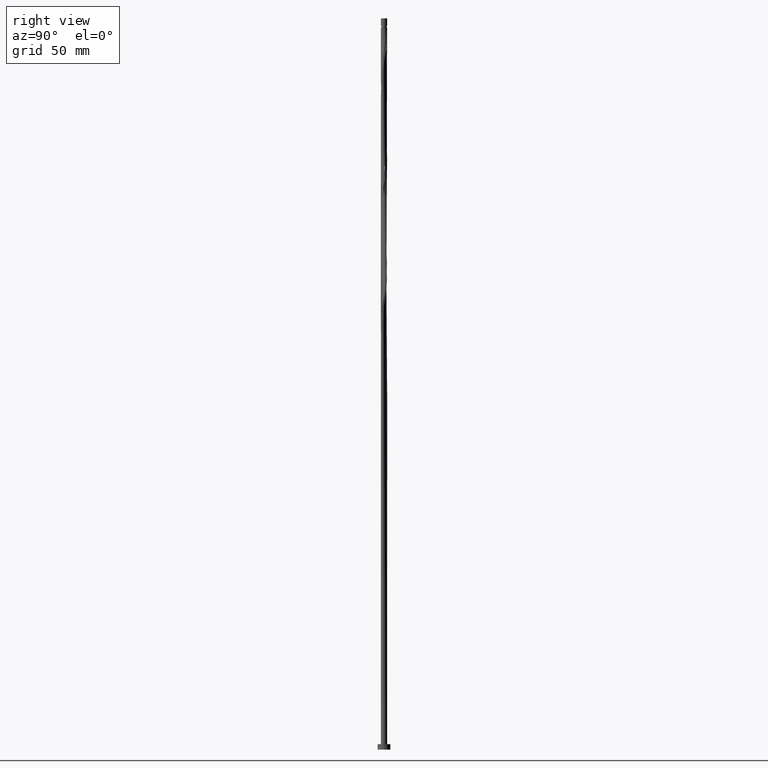
[diagram: clean part render]
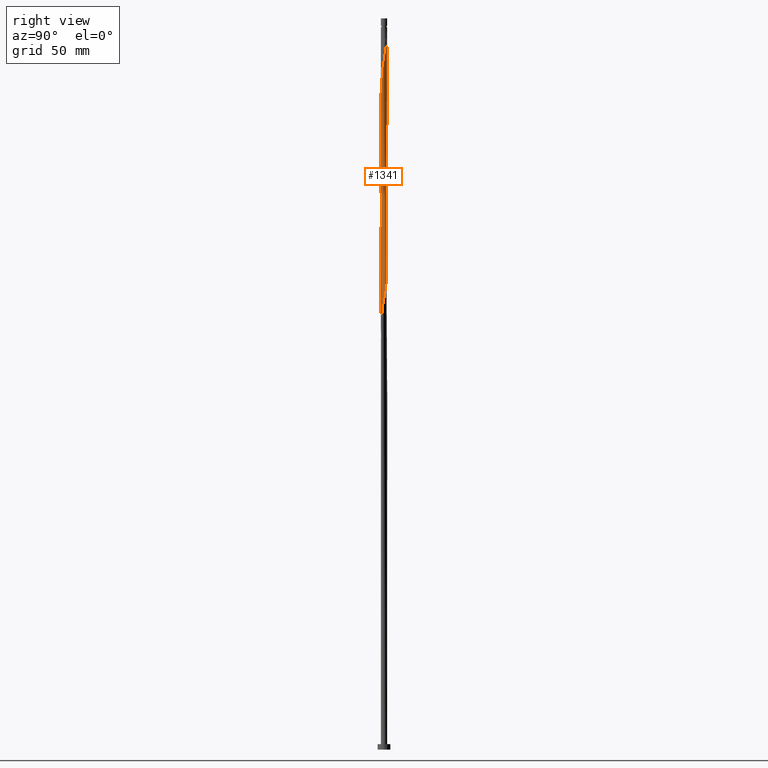
[diagram: same view with one face highlighted and labeled with its STEP entity id]
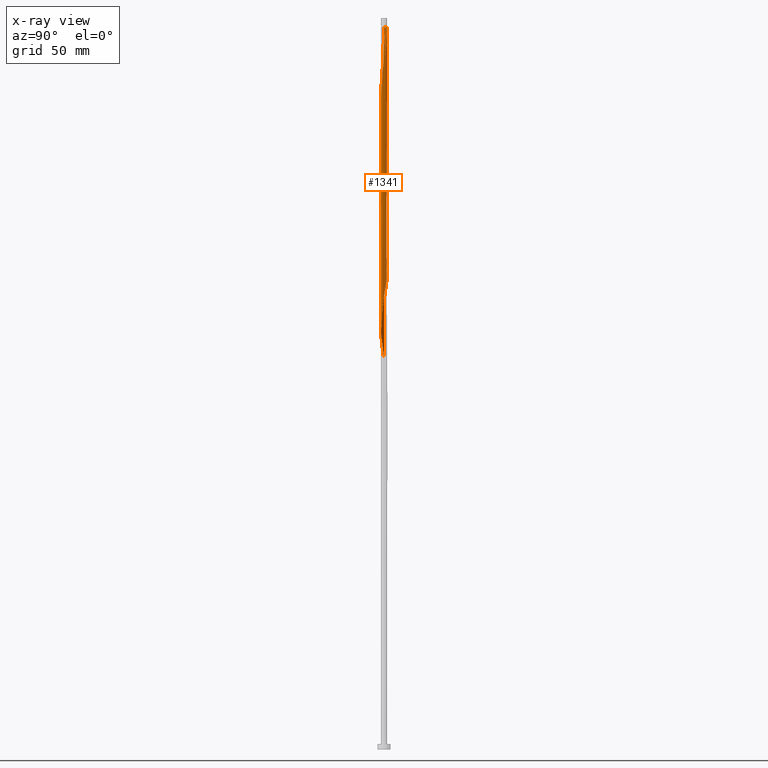
[diagram: x-ray of the same camera — body ghosted, the highlighted face saturated]
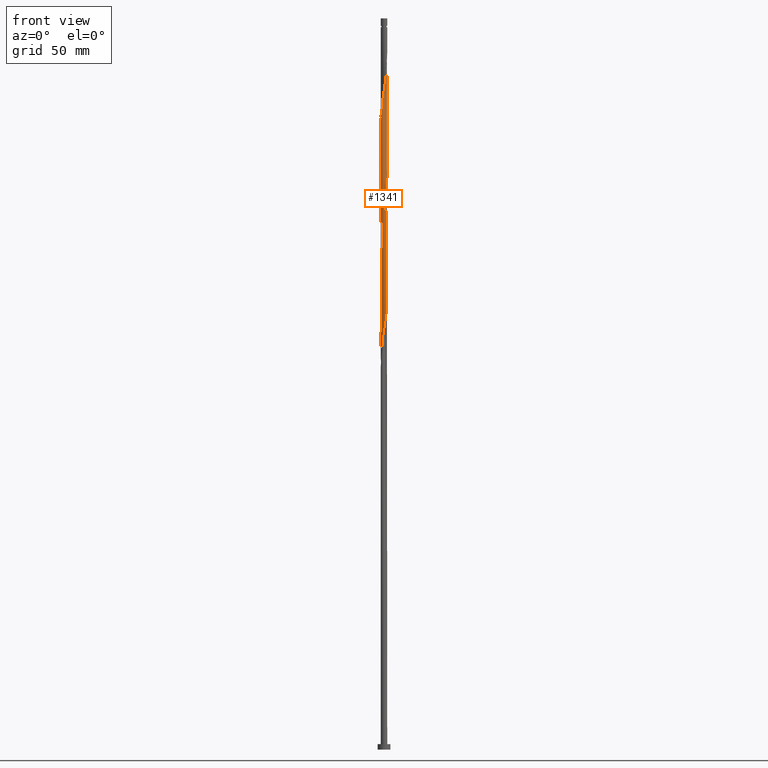
[diagram: same view with one face highlighted and labeled with its STEP entity id]
A machine part, right view. The second image highlights one B-rep face of the part: STEP entity #1341.
The next image is the same camera in x-ray: the body ghosted, the highlighted face saturated — about 0% of this face is hidden behind the body in this view.
A second angle (front view) of the same face is appended — the face is thin or edge-on in the first view.
In plain terms, the highlighted cylindrical surface (bore or boss wall) has radius 1.75 mm, axis along (-0, -0, -1).
Its self-contained STEP definition (entity closure, byte-faithful):
#3 = CARTESIAN_POINT ( 'NONE',  ( -1.750000000000000000, -1.644325696273075192E-16, 213.9816421502443404 ) ) ;
#39 = ORIENTED_EDGE ( 'NONE', *, *, #1815, .T. ) ;
#57 = CARTESIAN_POINT ( 'NONE',  ( -1.659356368983971652, -0.5559104610567499050, 217.4117544622783669 ) ) ;
#66 = CARTESIAN_POINT ( 'NONE',  ( 1.724446699451429366, -0.3501638371253402160, 245.1895322400561099 ) ) ;
#74 = CARTESIAN_POINT ( 'NONE',  ( 1.738675734985620336, 0.1987628953608082116, 248.5228655733894811 ) ) ;
#75 = CARTESIAN_POINT ( 'NONE',  ( 0.6972041507806022720, -1.605118803121534876, 364.0784211289450241 ) ) ;
#79 = EDGE_CURVE ( 'NONE', #1019, #643, #142, .T. ) ;
#82 = ORIENTED_EDGE ( 'NONE', *, *, #1622, .T. ) ;
#84 = CARTESIAN_POINT ( 'NONE',  ( -1.189285546401575688, 1.296892833351922736, 271.8561989067227955 ) ) ;
#85 = CARTESIAN_POINT ( 'NONE',  ( 1.724446699451432474, 0.3501638371253398829, 378.5228655733894243 ) ) ;
#94 = CARTESIAN_POINT ( 'NONE',  ( -0.1679918395066860026, -1.751602087786616302, 229.6339766845005670 ) ) ;
#95 = EDGE_CURVE ( 'NONE', #1775, #1219, #1181, .T. ) ;
#97 = CARTESIAN_POINT ( 'NONE',  ( -1.189285546401577909, -1.296892833351923846, 351.8561989067226818 ) ) ;
#105 = CARTESIAN_POINT ( 'NONE',  ( -1.669203472836609414, -0.5256041916406432035, 346.3006433511673094 ) ) ;
#114 = CARTESIAN_POINT ( 'NONE',  ( -0.7263150966484996918, -1.592157774964682915, 355.1895322400561099 ) ) ;
#122 = CARTESIAN_POINT ( 'NONE',  ( 1.165474128162896417, 1.318332730634496519, 322.9673100178338814 ) ) ;
#142 = LINE ( 'NONE', #1610, #334 ) ;
#146 = DIRECTION ( 'NONE',  ( -0.000000000000000000, -0.000000000000000000, -1.000000000000000000 ) ) ;
#149 = CARTESIAN_POINT ( 'NONE',  ( 1.041471584205018397, -1.406355907760723722, 304.0784211289450241 ) ) ;
#161 = CARTESIAN_POINT ( 'NONE',  ( 0.7263150966484975823, -1.592157774964680916, 301.8561989067227955 ) ) ;
#170 = CARTESIAN_POINT ( 'NONE',  ( 1.432935985591726524, -1.021286244534576726, 307.4117544622783953 ) ) ;
#178 = CARTESIAN_POINT ( 'NONE',  ( -1.414102509266472518, -1.047208300848277984, 287.4117544622782816 ) ) ;
#197 = CARTESIAN_POINT ( 'NONE',  ( -1.311110765996650995, 1.159089538943249176, 272.9673100178339382 ) ) ;
#204 = CARTESIAN_POINT ( 'NONE',  ( 0.5284993664679568104, 1.678397912213382526, 260.7450877956116528 ) ) ;
#211 = VECTOR ( 'NONE', #1313, 1000.000000000000000 ) ;
#215 = CARTESIAN_POINT ( 'NONE',  ( 1.742006628276570046, -0.1670715626325923187, 246.3006433511673379 ) ) ;
#222 = CARTESIAN_POINT ( 'NONE',  ( 0.01593294872431177955, -1.749927467395419933, 230.7450877956116813 ) ) ;
#224 = CARTESIAN_POINT ( 'NONE',  ( 1.742006628276573155, 0.1670715626325900982, 377.4117544622783953 ) ) ;
#225 = ORIENTED_EDGE ( 'NONE', *, *, #1741, .F. ) ;
#230 = VERTEX_POINT ( 'NONE', #1739 ) ;
#233 = CARTESIAN_POINT ( 'NONE',  ( -1.523448115906754330, 0.8611653953452605981, 275.1895322400562236 ) ) ;
#235 = CARTESIAN_POINT ( 'NONE',  ( -1.311110765996653882, -1.159089538943250286, 350.7450877956116528 ) ) ;
#244 = CARTESIAN_POINT ( 'NONE',  ( -1.041471584205018841, 1.406355907760723500, 337.4117544622783953 ) ) ;
#247 = CARTESIAN_POINT ( 'NONE',  ( 1.738675734985623444, -0.1987628953608094051, 375.1895322400560531 ) ) ;
#254 = CARTESIAN_POINT ( 'NONE',  ( -0.3794151541219218382, 1.708374707382030344, 332.9673100178338814 ) ) ;
#265 = CARTESIAN_POINT ( 'NONE',  ( 0.8659089350932489548, 1.531839694029681231, 325.1895322400561668 ) ) ;
#268 = CARTESIAN_POINT ( 'NONE',  ( 0.5284993664679552561, -1.678397912213386300, 362.9673100178339382 ) ) ;
#274 = CARTESIAN_POINT ( 'NONE',  ( 1.414102509266473184, 1.047208300848276874, 320.7450877956117097 ) ) ;
#282 = CARTESIAN_POINT ( 'NONE',  ( -1.432935985591727190, 1.021286244534576060, 340.7450877956118234 ) ) ;
#295 = CARTESIAN_POINT ( 'NONE',  ( 0.8936576220084644362, 1.515818982169525819, 387.4117544622783953 ) ) ;
#305 = CARTESIAN_POINT ( 'NONE',  ( -0.1679918395066765380, 1.751602087786618966, 394.0784211289450241 ) ) ;
#307 = CARTESIAN_POINT ( 'NONE',  ( -0.1679918395066860026, -1.751602087786616302, 296.3006433511673094 ) ) ;
#321 = CARTESIAN_POINT ( 'NONE',  ( -1.015691531628072575, -1.425086212332089097, 290.7450877956117097 ) ) ;
#329 = CARTESIAN_POINT ( 'NONE',  ( 0.000000000000000000, 0.000000000000000000, 400.0000000000000000 ) ) ;
#331 = CARTESIAN_POINT ( 'NONE',  ( -0.3482456029873576830, 1.715000000000447056, 395.1895322400559962 ) ) ;
#334 = VECTOR ( 'NONE', #729, 1000.000000000000000 ) ;
#341 = CARTESIAN_POINT ( 'NONE',  ( 1.432935985591726524, -1.021286244534576726, 240.7450877956117381 ) ) ;
#352 = CARTESIAN_POINT ( 'NONE',  ( 0.1679918395066853365, 1.751602087786616080, 262.9673100178339382 ) ) ;
#362 = CARTESIAN_POINT ( 'NONE',  ( 1.041471584205018397, -1.406355907760723722, 237.4117544622784237 ) ) ;
#370 = CARTESIAN_POINT ( 'NONE',  ( 0.8659089350932489548, 1.531839694029681231, 258.5228655733894811 ) ) ;
#371 = CARTESIAN_POINT ( 'NONE',  ( -0.8936576220084635480, -1.515818982169526485, 354.0784211289450241 ) ) ;
#379 = CARTESIAN_POINT ( 'NONE',  ( 0.5589725712885337261, -1.668496567759837124, 234.0784211289449956 ) ) ;
#390 = DIRECTION ( 'NONE',  ( -1.000000000000000000, 0.000000000000000000, 0.000000000000000000 ) ) ;
#400 = CARTESIAN_POINT ( 'NONE',  ( 0.3482456029873208236, 1.714999999999998970, 328.5228655733894243 ) ) ;
#405 = VERTEX_POINT ( 'NONE', #331 ) ;
#413 =( BOUNDED_CURVE ( )  B_SPLINE_CURVE ( 2, ( #842, #1590, #1696, #429, #1285, #977, #1129, #282, #997, #553, #244, #1013, #1273, #1708, #254, #1728, #1571, #871, #400, #1414, #1140, #265, #1425, #122, #707, #274, #864, #734, #1040, #1781, #596, #1486, #1758 ),
 .UNSPECIFIED., .F., .T. ) 
 B_SPLINE_CURVE_WITH_KNOTS ( ( 3, 2, 2, 2, 2, 2, 2, 2, 2, 2, 2, 2, 2, 2, 2, 2, 3 ),
 ( 0.4295286012773116280, 0.4333333333333333481, 0.4416666666666666519, 0.4500000000000000111, 0.4583333333333333148, 0.4666666666666666741, 0.4749999999999999778, 0.4833333333333333370, 0.4916666666666666408, 0.5000000000000000000, 0.5083333333333333037, 0.5166666666666667185, 0.5250000000000000222, 0.5333333333333333259, 0.5416666666666666297, 0.5500000000000000444, 0.5545286012773111839 ),
 .UNSPECIFIED. ) 
 CURVE ( )  GEOMETRIC_REPRESENTATION_ITEM ( )  RATIONAL_B_SPLINE_CURVE ( ( 0.9066196499552807708, 0.9068171577856936061, 0.9090909090909925494, 0.9041108139712406011, 0.9090909090909925494, 0.9041108139712406011, 0.9090909090909925494, 0.9041108139712406011, 0.9090909090909925494, 0.9041108139712406011, 0.9090909090909925494, 0.9041108139712406011, 0.9090909090909925494, 0.9041108139712406011, 0.9090909090909925494, 0.9041108139712406011, 0.9090909090909925494, 0.9041108139712406011, 0.9090909090909925494, 0.9041108139712406011, 0.9090909090909925494, 0.9041108139712406011, 0.9090909090909925494, 0.9041108139712406011, 0.9090909090909925494, 0.9041108139712406011, 0.9090909090909925494, 0.9041108139712406011, 0.9090909090909925494, 0.9041108139712406011, 0.9090909090909925494, 0.9063845652765397665, 0.9066196499552807708 ) ) 
 REPRESENTATION_ITEM ( '' )  );
#429 = CARTESIAN_POINT ( 'NONE',  ( -1.724446699451429366, 0.3501638371253399384, 345.1895322400561099 ) ) ;
#454 = CARTESIAN_POINT ( 'NONE',  ( 1.724446699451429366, -0.3501638371253402160, 311.8561989067227955 ) ) ;
#463 = CARTESIAN_POINT ( 'NONE',  ( 1.311110765996654548, 1.159089538943249620, 384.0784211289449672 ) ) ;
#472 = CARTESIAN_POINT ( 'NONE',  ( 1.742006628276570046, -0.1670715626325923187, 312.9673100178339951 ) ) ;
#476 = FACE_OUTER_BOUND ( 'NONE', #857, .T. ) ;
#482 =( BOUNDED_CURVE ( )  B_SPLINE_CURVE ( 2, ( #1406, #968, #1286, #536, #105, #844, #1264, #1277, #235, #97, #1680, #371, #114, #1825, #1573, #1123, #518, #1854, #980, #268, #75, #1554, #1390, #546, #1417, #854, #1131, #1529, #658, #1711, #247, #959, #224, #85, #989, #1032, #1583, #1025, #463, #1322, #709, #295, #873, #1599, #1298, #1609, #1042, #305, #1748 ),
 .UNSPECIFIED., .F., .T. ) 
 B_SPLINE_CURVE_WITH_KNOTS ( ( 3, 2, 2, 2, 2, 2, 2, 2, 2, 2, 2, 2, 2, 2, 2, 2, 2, 2, 2, 2, 2, 2, 2, 2, 3 ),
 ( 0.5545286012773116280, 0.5583333333333333481, 0.5666666666666666519, 0.5749999999999999556, 0.5833333333333332593, 0.5916666666666665630, 0.5999999999999998668, 0.6083333333333332815, 0.6166666666666665853, 0.6249999999999998890, 0.6333333333333331927, 0.6416666666666664964, 0.6499999999999999112, 0.6583333333333332149, 0.6666666666666665186, 0.6749999999999998224, 0.6833333333333331261, 0.6916666666666664298, 0.6999999999999997335, 0.7083333333333330373, 0.7166666666666664520, 0.7249999999999996447, 0.7333333333333330595, 0.7416666666666663632, 0.7499999999999996669 ),
 .UNSPECIFIED. ) 
 CURVE ( )  GEOMETRIC_REPRESENTATION_ITEM ( )  RATIONAL_B_SPLINE_CURVE ( ( 0.9066196499552878763, 0.9068171577857007115, 0.9090909090909996548, 0.9041108139712475955, 0.9090909090909996548, 0.9041108139712475955, 0.9090909090909996548, 0.9041108139712475955, 0.9090909090909996548, 0.9041108139712475955, 0.9090909090909996548, 0.9041108139712475955, 0.9090909090909996548, 0.9041108139712475955, 0.9090909090909996548, 0.9041108139712475955, 0.9090909090909996548, 0.9041108139712475955, 0.9090909090909996548, 0.9041108139712475955, 0.9090909090909996548, 0.9041108139712475955, 0.9090909090909996548, 0.9041108139712475955, 0.9090909090909996548, 0.9041108139712475955, 0.9090909090909996548, 0.9041108139712475955, 0.9090909090909996548, 0.9041108139712475955, 0.9090909090909996548, 0.9041108139712475955, 0.9090909090909996548, 0.9041108139712475955, 0.9090909090909996548, 0.9041108139712475955, 0.9090909090909996548, 0.9041108139712475955, 0.9090909090909996548, 0.9041108139712475955, 0.9090909090909996548, 0.9041108139712475955, 0.9090909090909996548, 0.9041108139712475955, 0.9090909090909996548, 0.9041108139712475955, 0.9090909090909996548, 0.9041108139712478176, 0.9090909090909994328 ) ) 
 REPRESENTATION_ITEM ( '' )  );
#486 = CARTESIAN_POINT ( 'NONE',  ( 1.311110765996650995, -1.159089538943249842, 306.3006433511671958 ) ) ;
#493 = CARTESIAN_POINT ( 'NONE',  ( 1.750000000000000000, 2.143131898507868297E-16, 395.1895322400561668 ) ) ;
#498 = CARTESIAN_POINT ( 'NONE',  ( -1.659356368983971652, -0.5559104610567499050, 284.0784211289451378 ) ) ;
#508 = CARTESIAN_POINT ( 'NONE',  ( 1.289788318714684578, 1.182770515741387474, 255.1895322400561952 ) ) ;
#516 = CARTESIAN_POINT ( 'NONE',  ( -0.01593294872431220977, 1.749927467395419933, 264.0784211289449672 ) ) ;
#518 = CARTESIAN_POINT ( 'NONE',  ( -0.01593294872431327489, -1.749927467395422820, 359.6339766845005670 ) ) ;
#524 = CARTESIAN_POINT ( 'NONE',  ( 0.6972041507806027161, 1.605118803121531990, 259.6339766845006807 ) ) ;
#535 = CARTESIAN_POINT ( 'NONE',  ( -0.5589725712885340592, 1.668496567759837124, 267.4117544622784521 ) ) ;
#536 = CARTESIAN_POINT ( 'NONE',  ( -1.724446699451432474, -0.3501638371253400495, 345.1895322400561099 ) ) ;
#544 = CARTESIAN_POINT ( 'NONE',  ( -1.749999999999999556, -0.09970404053125818400, 214.5872334596288908 ) ) ;
#546 = CARTESIAN_POINT ( 'NONE',  ( 1.165474128162897527, -1.318332730634499850, 367.4117544622784521 ) ) ;
#553 = CARTESIAN_POINT ( 'NONE',  ( -1.189285546401575688, 1.296892833351922736, 338.5228655733894811 ) ) ;
#589 = ORIENTED_EDGE ( 'NONE', *, *, #95, .T. ) ;
#596 = CARTESIAN_POINT ( 'NONE',  ( 1.738675734985620336, 0.1987628953608082116, 315.1895322400560531 ) ) ;
#601 = CARTESIAN_POINT ( 'NONE',  ( -1.289788318714684578, -1.182770515741387474, 288.5228655733895380 ) ) ;
#605 = ORIENTED_EDGE ( 'NONE', *, *, #669, .F. ) ;
#639 = CARTESIAN_POINT ( 'NONE',  ( -1.717784912869531500, -0.3815050788614599009, 216.3006433511672526 ) ) ;
#643 = VERTEX_POINT ( 'NONE', #1759 ) ;
#651 = CARTESIAN_POINT ( 'NONE',  ( -1.742006628276570046, 0.1670715626325917080, 279.6339766845006807 ) ) ;
#657 = CARTESIAN_POINT ( 'NONE',  ( 1.015691531628073463, 1.425086212332088431, 257.4117544622783953 ) ) ;
#658 = CARTESIAN_POINT ( 'NONE',  ( 1.659356368983974317, -0.5559104610567522364, 372.9673100178339382 ) ) ;
#664 = CARTESIAN_POINT ( 'NONE',  ( -1.669203472836606084, 0.5256041916406430925, 277.4117544622784521 ) ) ;
#669 = EDGE_CURVE ( 'NONE', #230, #1219, #1525, .T. ) ;
#673 = CARTESIAN_POINT ( 'NONE',  ( -1.165474128162896417, -1.318332730634496741, 222.9673100178339382 ) ) ;
#707 = CARTESIAN_POINT ( 'NONE',  ( 1.289788318714684578, 1.182770515741387474, 321.8561989067228524 ) ) ;
#709 = CARTESIAN_POINT ( 'NONE',  ( 1.041471584205021284, 1.406355907760724611, 386.3006433511673094 ) ) ;
#714 = LINE ( 'NONE', #879, #211 ) ;
#727 = DIRECTION ( 'NONE',  ( -1.000000000000000000, 0.000000000000000000, 0.000000000000000000 ) ) ;
#729 = DIRECTION ( 'NONE',  ( -0.000000000000000000, -0.000000000000000000, -1.000000000000000000 ) ) ;
#734 = CARTESIAN_POINT ( 'NONE',  ( 1.600927825098412693, 0.7303158432520397980, 318.5228655733894243 ) ) ;
#760 = CYLINDRICAL_SURFACE ( 'NONE', #1039, 1.750000000000000000 ) ;
#763 = CARTESIAN_POINT ( 'NONE',  ( 1.613960246221781913, -0.7010445461559463576, 309.6339766845006238 ) ) ;
#772 = CARTESIAN_POINT ( 'NONE',  ( 0.3794151541219211721, -1.708374707382031010, 232.9673100178339666 ) ) ;
#781 = CARTESIAN_POINT ( 'NONE',  ( 1.717784912869531500, 0.3815050788614592348, 249.6339766845005954 ) ) ;
#792 = CARTESIAN_POINT ( 'NONE',  ( 1.311110765996650995, -1.159089538943249842, 239.6339766845006238 ) ) ;
#804 = CARTESIAN_POINT ( 'NONE',  ( -0.8659089350932486218, -1.531839694029681231, 225.1895322400561383 ) ) ;
#815 = CARTESIAN_POINT ( 'NONE',  ( -1.432935985591727190, 1.021286244534576060, 274.0784211289450809 ) ) ;
#828 = CARTESIAN_POINT ( 'NONE',  ( -1.750000000000000000, -1.644325696273075438E-16, 213.9816421502443404 ) ) ;
#842 = CARTESIAN_POINT ( 'NONE',  ( -1.749999999999999778, 9.566985869225163496E-16, 347.3149754835777117 ) ) ;
#844 = CARTESIAN_POINT ( 'NONE',  ( -1.613960246221785244, -0.7010445461559460245, 347.4117544622783953 ) ) ;
#854 = CARTESIAN_POINT ( 'NONE',  ( 1.414102509266473851, -1.047208300848280649, 369.6339766845005670 ) ) ;
#857 = EDGE_LOOP ( 'NONE', ( #1890, #82, #225, #589, #605, #1822, #39, #1076 ) ) ;
#864 = CARTESIAN_POINT ( 'NONE',  ( 1.507515167182442939, 0.8887620720501583360, 319.6339766845005101 ) ) ;
#871 = CARTESIAN_POINT ( 'NONE',  ( 0.1679918395066853365, 1.751602087786616080, 329.6339766845005670 ) ) ;
#873 = CARTESIAN_POINT ( 'NONE',  ( 0.7263150966484999138, 1.592157774964682915, 388.5228655733894243 ) ) ;
#879 = CARTESIAN_POINT ( 'NONE',  ( 1.750000000000000000, 2.143131898507868297E-16, 400.0000000000000000 ) ) ;
#894 = CARTESIAN_POINT ( 'NONE',  ( -0.5284993664679558112, -1.678397912213382526, 294.0784211289450809 ) ) ;
#902 = CARTESIAN_POINT ( 'NONE',  ( 1.750000000000000000, -5.157203320129190822E-16, 313.9816421502443973 ) ) ;
#921 = CARTESIAN_POINT ( 'NONE',  ( 1.189285546401575688, -1.296892833351922736, 305.1895322400561668 ) ) ;
#930 = CARTESIAN_POINT ( 'NONE',  ( 1.189285546401575688, -1.296892833351922736, 238.5228655733895096 ) ) ;
#939 = CARTESIAN_POINT ( 'NONE',  ( 0.3482456029873208236, 1.714999999999998970, 261.8561989067228524 ) ) ;
#946 = CARTESIAN_POINT ( 'NONE',  ( -0.6972041507806027161, -1.605118803121531990, 226.3006433511672526 ) ) ;
#949 = EDGE_CURVE ( 'NONE', #643, #230, #413, .T. ) ;
#958 = CARTESIAN_POINT ( 'NONE',  ( 1.659356368983972096, 0.5559104610567487947, 250.7450877956117665 ) ) ;
#959 = CARTESIAN_POINT ( 'NONE',  ( 1.759566557101713169, -0.01602071186015805240, 376.3006433511671958 ) ) ;
#966 = CARTESIAN_POINT ( 'NONE',  ( -0.5284993664679558112, -1.678397912213382526, 227.4117544622783385 ) ) ;
#968 = CARTESIAN_POINT ( 'NONE',  ( -1.750000000000002220, -0.08372699875181717488, 343.5726375220986597 ) ) ;
#977 = CARTESIAN_POINT ( 'NONE',  ( -1.613960246221781913, 0.7010445461559460245, 342.9673100178339382 ) ) ;
#980 = CARTESIAN_POINT ( 'NONE',  ( 0.3482456029873204351, -1.715000000000002078, 361.8561989067229092 ) ) ;
#982 = VECTOR ( 'NONE', #1167, 1000.000000000000000 ) ;
#989 = CARTESIAN_POINT ( 'NONE',  ( 1.669203472836609414, 0.5256041916406425374, 379.6339766845005101 ) ) ;
#997 = CARTESIAN_POINT ( 'NONE',  ( -1.311110765996650995, 1.159089538943249176, 339.6339766845005670 ) ) ;
#1013 = CARTESIAN_POINT ( 'NONE',  ( -0.8936576220084612165, 1.515818982169524487, 336.3006433511673094 ) ) ;
#1019 = VERTEX_POINT ( 'NONE', #1344 ) ;
#1025 = CARTESIAN_POINT ( 'NONE',  ( 1.432935985591730299, 1.021286244534576282, 382.9673100178338814 ) ) ;
#1032 = CARTESIAN_POINT ( 'NONE',  ( 1.613960246221785688, 0.7010445461559451363, 380.7450877956117665 ) ) ;
#1033 = CARTESIAN_POINT ( 'NONE',  ( 1.669203472836606084, -0.5256041916406440917, 310.7450877956116528 ) ) ;
#1039 = AXIS2_PLACEMENT_3D ( 'NONE', #329, #146, #727 ) ;
#1040 = CARTESIAN_POINT ( 'NONE',  ( 1.659356368983972096, 0.5559104610567487947, 317.4117544622784521 ) ) ;
#1042 = CARTESIAN_POINT ( 'NONE',  ( 0.01593294872431348305, 1.749927467395422820, 392.9673100178338814 ) ) ;
#1053 = CARTESIAN_POINT ( 'NONE',  ( -1.750000000000000000, 0.000000000000000000, 400.0000000000000000 ) ) ;
#1054 = CARTESIAN_POINT ( 'NONE',  ( 0.5589725712885337261, -1.668496567759837124, 300.7450877956117665 ) ) ;
#1075 = CARTESIAN_POINT ( 'NONE',  ( -0.6972041507806027161, -1.605118803121531990, 292.9673100178339382 ) ) ;
#1076 = ORIENTED_EDGE ( 'NONE', *, *, #949, .F. ) ;
#1083 = CARTESIAN_POINT ( 'NONE',  ( -1.738675734985620336, -0.1987628953608084059, 281.8561989067228524 ) ) ;
#1094 = CARTESIAN_POINT ( 'NONE',  ( 1.165474128162896417, 1.318332730634496519, 256.3006433511672526 ) ) ;
#1100 = CARTESIAN_POINT ( 'NONE',  ( 0.7263150966484975823, -1.592157774964680916, 235.1895322400561668 ) ) ;
#1111 = CARTESIAN_POINT ( 'NONE',  ( 1.414102509266473184, 1.047208300848276874, 254.0784211289451662 ) ) ;
#1122 = CARTESIAN_POINT ( 'NONE',  ( -0.8936576220084612165, 1.515818982169524487, 269.6339766845006238 ) ) ;
#1123 = CARTESIAN_POINT ( 'NONE',  ( -0.1998577369553107552, -1.748252847004226451, 358.5228655733894243 ) ) ;
#1129 = CARTESIAN_POINT ( 'NONE',  ( -1.523448115906754330, 0.8611653953452605981, 341.8561989067227387 ) ) ;
#1131 = CARTESIAN_POINT ( 'NONE',  ( 1.507515167182444493, -0.8887620720501615557, 370.7450877956117097 ) ) ;
#1140 = CARTESIAN_POINT ( 'NONE',  ( 0.6972041507806027161, 1.605118803121531990, 326.3006433511673094 ) ) ;
#1167 = DIRECTION ( 'NONE',  ( -0.000000000000000000, -0.000000000000000000, -1.000000000000000000 ) ) ;
#1181 = LINE ( 'NONE', #1053, #982 ) ;
#1215 = CARTESIAN_POINT ( 'NONE',  ( 1.750000000000000222, -0.08372699875180894535, 313.4730936246803026 ) ) ;
#1219 = VERTEX_POINT ( 'NONE', #3 ) ;
#1228 = CARTESIAN_POINT ( 'NONE',  ( -1.759566557101710282, -0.01602071186015651197, 280.7450877956117097 ) ) ;
#1239 = CARTESIAN_POINT ( 'NONE',  ( 1.613960246221781913, -0.7010445461559463576, 242.9673100178339666 ) ) ;
#1246 = CARTESIAN_POINT ( 'NONE',  ( -1.717784912869531500, -0.3815050788614599009, 282.9673100178338814 ) ) ;
#1247 = CARTESIAN_POINT ( 'NONE',  ( 0.000000000000000000, 0.000000000000000000, 395.1895322400561668 ) ) ;
#1252 = CARTESIAN_POINT ( 'NONE',  ( 1.507515167182442939, 0.8887620720501583360, 252.9673100178339666 ) ) ;
#1263 = CARTESIAN_POINT ( 'NONE',  ( -1.724446699451429366, 0.3501638371253399384, 278.5228655733895380 ) ) ;
#1264 = CARTESIAN_POINT ( 'NONE',  ( -1.523448115906757661, -0.8611653953452617083, 348.5228655733894243 ) ) ;
#1273 = CARTESIAN_POINT ( 'NONE',  ( -0.7263150966484976934, 1.592157774964680916, 335.1895322400561668 ) ) ;
#1277 = CARTESIAN_POINT ( 'NONE',  ( -1.432935985591729411, -1.021286244534576726, 349.6339766845005101 ) ) ;
#1285 = CARTESIAN_POINT ( 'NONE',  ( -1.669203472836606084, 0.5256041916406430925, 344.0784211289450809 ) ) ;
#1286 = CARTESIAN_POINT ( 'NONE',  ( -1.742006628276573155, -0.1670715626325910974, 344.0784211289450809 ) ) ;
#1298 = CARTESIAN_POINT ( 'NONE',  ( 0.3794151541219242252, 1.708374707382032343, 390.7450877956117665 ) ) ;
#1313 = DIRECTION ( 'NONE',  ( -0.000000000000000000, -0.000000000000000000, -1.000000000000000000 ) ) ;
#1318 = AXIS2_PLACEMENT_3D ( 'NONE', #1247, #1689, #390 ) ;
#1322 = CARTESIAN_POINT ( 'NONE',  ( 1.189285546401578353, 1.296892833351923402, 385.1895322400560531 ) ) ;
#1331 = CARTESIAN_POINT ( 'NONE',  ( -0.8659089350932486218, -1.531839694029681231, 291.8561989067228524 ) ) ;
#1337 = CARTESIAN_POINT ( 'NONE',  ( 0.3794151541219211721, -1.708374707382031010, 299.6339766845006238 ) ) ;
#1341 = ADVANCED_FACE ( 'NONE', ( #476 ), #760, .T. ) ;
#1342 = CIRCLE ( 'NONE', #1318, 1.749999999999963807 ) ;
#1344 = CARTESIAN_POINT ( 'NONE',  ( -1.749999999999963807, 0.000000000000000000, 395.1895322400561668 ) ) ;
#1346 = CARTESIAN_POINT ( 'NONE',  ( -1.507515167182442717, -0.8887620720501583360, 286.3006433511673663 ) ) ;
#1355 = CARTESIAN_POINT ( 'NONE',  ( 0.1998577369553096728, -1.748252847004224009, 298.5228655733894243 ) ) ;
#1365 = CARTESIAN_POINT ( 'NONE',  ( 1.600927825098412693, 0.7303158432520397980, 251.8561989067228524 ) ) ;
#1372 = CARTESIAN_POINT ( 'NONE',  ( 1.759566557101710282, 0.01602071186015555440, 247.4117544622783669 ) ) ;
#1379 = CARTESIAN_POINT ( 'NONE',  ( -0.3482456029873204906, -1.714999999999998970, 228.5228655733894527 ) ) ;
#1381 = VERTEX_POINT ( 'NONE', #493 ) ;
#1388 = CARTESIAN_POINT ( 'NONE',  ( -1.289788318714684578, -1.182770515741387474, 221.8561989067228239 ) ) ;
#1390 = CARTESIAN_POINT ( 'NONE',  ( 1.015691531628072797, -1.425086212332092206, 366.3006433511672526 ) ) ;
#1396 = CARTESIAN_POINT ( 'NONE',  ( -1.507515167182442717, -0.8887620720501583360, 219.6339766845005954 ) ) ;
#1406 = CARTESIAN_POINT ( 'NONE',  ( -1.750000000000002887, -1.121131156549814895E-16, 343.0640889965346219 ) ) ;
#1414 = CARTESIAN_POINT ( 'NONE',  ( 0.5284993664679568104, 1.678397912213382526, 327.4117544622783385 ) ) ;
#1417 = CARTESIAN_POINT ( 'NONE',  ( 1.289788318714685245, -1.182770515741389694, 368.5228655733893675 ) ) ;
#1425 = CARTESIAN_POINT ( 'NONE',  ( 1.015691531628073463, 1.425086212332088431, 324.0784211289449672 ) ) ;
#1452 = CARTESIAN_POINT ( 'NONE',  ( 0.8936576220084608835, -1.515818982169524709, 302.9673100178341087 ) ) ;
#1470 = CARTESIAN_POINT ( 'NONE',  ( 1.523448115906754330, -0.8611653953452607091, 308.5228655733895948 ) ) ;
#1486 = CARTESIAN_POINT ( 'NONE',  ( 1.749999999999999556, 0.09970404053126001587, 314.5872334596289193 ) ) ;
#1487 = CARTESIAN_POINT ( 'NONE',  ( -0.3482456029873204906, -1.714999999999998970, 295.1895322400562236 ) ) ;
#1497 = CARTESIAN_POINT ( 'NONE',  ( 0.8936576220084608835, -1.515818982169524709, 236.3006433511672526 ) ) ;
#1507 = CARTESIAN_POINT ( 'NONE',  ( -0.1998577369553098948, 1.748252847004224009, 265.1895322400561668 ) ) ;
#1520 = CARTESIAN_POINT ( 'NONE',  ( -1.738675734985620336, -0.1987628953608084059, 215.1895322400561668 ) ) ;
#1525 =( BOUNDED_CURVE ( )  B_SPLINE_CURVE ( 2, ( #902, #1215, #472, #454, #1033, #763, #1470, #170, #486, #921, #149, #1452, #161, #1054, #1337, #1355, #1611, #307, #1487, #894, #1075, #1331, #321, #1630, #601, #178, #1346, #1833, #498, #1246, #1083, #1228, #651, #1263, #664, #1687, #233, #815, #197, #84, #1660, #1122, #1679, #535, #1823, #1507, #516, #352, #939, #204, #524, #370, #657, #1094, #508, #1111, #1252, #1365, #958, #781, #74, #1372, #215, #66, #1670, #1239, #1814, #341, #792, #930, #362, #1497, #1100, #379, #772, #1528, #222, #94, #1379, #966, #946, #804, #1540, #673, #1388, #1804, #1396, #1842, #57, #639, #1520, #544, #828 ),
 .UNSPECIFIED., .F., .T. ) 
 B_SPLINE_CURVE_WITH_KNOTS ( ( 3, 2, 2, 2, 2, 2, 2, 2, 2, 2, 2, 2, 2, 2, 2, 2, 2, 2, 2, 2, 2, 2, 2, 2, 2, 2, 2, 2, 2, 2, 2, 2, 2, 2, 2, 2, 2, 2, 2, 2, 2, 2, 2, 2, 2, 2, 3 ),
 ( 0.5545286012773111839, 0.5583333333333333481, 0.5666666666666666519, 0.5749999999999999556, 0.5833333333333333703, 0.5916666666666666741, 0.5999999999999999778, 0.6083333333333332815, 0.6166666666666666963, 0.6250000000000000000, 0.6333333333333333037, 0.6416666666666667185, 0.6500000000000000222, 0.6583333333333333259, 0.6666666666666666297, 0.6750000000000000444, 0.6833333333333333481, 0.6916666666666666519, 0.6999999999999999556, 0.7083333333333333703, 0.7166666666666666741, 0.7249999999999999778, 0.7333333333333332815, 0.7416666666666666963, 0.7500000000000000000, 0.7583333333333333037, 0.7666666666666667185, 0.7750000000000000222, 0.7833333333333333259, 0.7916666666666666297, 0.8000000000000000444, 0.8083333333333333481, 0.8166666666666666519, 0.8249999999999999556, 0.8333333333333333703, 0.8416666666666666741, 0.8499999999999999778, 0.8583333333333332815, 0.8666666666666666963, 0.8750000000000000000, 0.8833333333333333037, 0.8916666666666667185, 0.9000000000000000222, 0.9083333333333333259, 0.9166666666666666297, 0.9250000000000000444, 0.9295286012773112949 ),
 .UNSPECIFIED. ) 
 CURVE ( )  GEOMETRIC_REPRESENTATION_ITEM ( )  RATIONAL_B_SPLINE_CURVE ( ( 0.9066196499552807708, 0.9068171577856933840, 0.9090909090909925494, 0.9041108139712406011, 0.9090909090909925494, 0.9041108139712406011, 0.9090909090909925494, 0.9041108139712406011, 0.9090909090909925494, 0.9041108139712406011, 0.9090909090909925494, 0.9041108139712406011, 0.9090909090909925494, 0.9041108139712406011, 0.9090909090909925494, 0.9041108139712406011, 0.9090909090909925494, 0.9041108139712406011, 0.9090909090909925494, 0.9041108139712406011, 0.9090909090909925494, 0.9041108139712406011, 0.9090909090909925494, 0.9041108139712406011, 0.9090909090909925494, 0.9041108139712406011, 0.9090909090909925494, 0.9041108139712406011, 0.9090909090909925494, 0.9041108139712406011, 0.9090909090909925494, 0.9041108139712406011, 0.9090909090909925494, 0.9041108139712406011, 0.9090909090909925494, 0.9041108139712406011, 0.9090909090909925494, 0.9041108139712406011, 0.9090909090909925494, 0.9041108139712406011, 0.9090909090909925494, 0.9041108139712406011, 0.9090909090909925494, 0.9041108139712406011, 0.9090909090909925494, 0.9041108139712406011, 0.9090909090909925494, 0.9041108139712406011, 0.9090909090909925494, 0.9041108139712406011, 0.9090909090909925494, 0.9041108139712406011, 0.9090909090909925494, 0.9041108139712406011, 0.9090909090909925494, 0.9041108139712406011, 0.9090909090909925494, 0.9041108139712406011, 0.9090909090909925494, 0.9041108139712406011, 0.9090909090909925494, 0.9041108139712406011, 0.9090909090909925494, 0.9041108139712406011, 0.9090909090909925494, 0.9041108139712406011, 0.9090909090909925494, 0.9041108139712406011, 0.9090909090909925494, 0.9041108139712406011, 0.9090909090909925494, 0.9041108139712406011, 0.9090909090909925494, 0.9041108139712406011, 0.9090909090909925494, 0.9041108139712406011, 0.9090909090909925494, 0.9041108139712406011, 0.9090909090909925494, 0.9041108139712406011, 0.9090909090909925494, 0.9041108139712406011, 0.9090909090909925494, 0.9041108139712406011, 0.9090909090909925494, 0.9041108139712406011, 0.9090909090909925494, 0.9041108139712406011, 0.9090909090909925494, 0.9041108139712406011, 0.9090909090909925494, 0.9063845652765396554, 0.9066196499552807708 ) ) 
 REPRESENTATION_ITEM ( '' )  );
#1528 = CARTESIAN_POINT ( 'NONE',  ( 0.1998577369553096728, -1.748252847004224009, 231.8561989067228524 ) ) ;
#1529 = CARTESIAN_POINT ( 'NONE',  ( 1.600927825098414914, -0.7303158432520420185, 371.8561989067227387 ) ) ;
#1540 = CARTESIAN_POINT ( 'NONE',  ( -1.015691531628072575, -1.425086212332089097, 224.0784211289450809 ) ) ;
#1554 = CARTESIAN_POINT ( 'NONE',  ( 0.8659089350932496210, -1.531839694029684562, 365.1895322400561099 ) ) ;
#1571 = CARTESIAN_POINT ( 'NONE',  ( -0.01593294872431220977, 1.749927467395419933, 330.7450877956117665 ) ) ;
#1573 = CARTESIAN_POINT ( 'NONE',  ( -0.3794151541219233370, -1.708374707382032787, 357.4117544622782816 ) ) ;
#1583 = CARTESIAN_POINT ( 'NONE',  ( 1.523448115906757661, 0.8611653953452614862, 381.8561989067229092 ) ) ;
#1590 = CARTESIAN_POINT ( 'NONE',  ( -1.749999999999999778, 0.08372699875181852103, 346.8064269580136170 ) ) ;
#1599 = CARTESIAN_POINT ( 'NONE',  ( 0.5589725712885361686, 1.668496567759839122, 389.6339766845005670 ) ) ;
#1609 = CARTESIAN_POINT ( 'NONE',  ( 0.1998577369553109218, 1.748252847004226451, 391.8561989067226818 ) ) ;
#1610 = CARTESIAN_POINT ( 'NONE',  ( -1.750000000000000000, 0.000000000000000000, 400.0000000000000000 ) ) ;
#1611 = CARTESIAN_POINT ( 'NONE',  ( 0.01593294872431177955, -1.749927467395419933, 297.4117544622782816 ) ) ;
#1622 = EDGE_CURVE ( 'NONE', #1019, #405, #1342, .T. ) ;
#1630 = CARTESIAN_POINT ( 'NONE',  ( -1.165474128162896417, -1.318332730634496741, 289.6339766845006238 ) ) ;
#1660 = CARTESIAN_POINT ( 'NONE',  ( -1.041471584205018841, 1.406355907760723500, 270.7450877956117097 ) ) ;
#1670 = CARTESIAN_POINT ( 'NONE',  ( 1.669203472836606084, -0.5256041916406440917, 244.0784211289450809 ) ) ;
#1679 = CARTESIAN_POINT ( 'NONE',  ( -0.7263150966484976934, 1.592157774964680916, 268.5228655733894243 ) ) ;
#1680 = CARTESIAN_POINT ( 'NONE',  ( -1.041471584205021061, -1.406355907760724611, 352.9673100178338814 ) ) ;
#1687 = CARTESIAN_POINT ( 'NONE',  ( -1.613960246221781913, 0.7010445461559460245, 276.3006433511671958 ) ) ;
#1689 = DIRECTION ( 'NONE',  ( -0.000000000000000000, -0.000000000000000000, -1.000000000000000000 ) ) ;
#1696 = CARTESIAN_POINT ( 'NONE',  ( -1.742006628276570046, 0.1670715626325917080, 346.3006433511673094 ) ) ;
#1708 = CARTESIAN_POINT ( 'NONE',  ( -0.5589725712885340592, 1.668496567759837124, 334.0784211289450809 ) ) ;
#1711 = CARTESIAN_POINT ( 'NONE',  ( 1.717784912869533498, -0.3815050788614625099, 374.0784211289449104 ) ) ;
#1728 = CARTESIAN_POINT ( 'NONE',  ( -0.1998577369553098948, 1.748252847004224009, 331.8561989067227387 ) ) ;
#1729 = CARTESIAN_POINT ( 'NONE',  ( -1.750000000000002887, -1.121131156549814895E-16, 343.0640889965346219 ) ) ;
#1739 = CARTESIAN_POINT ( 'NONE',  ( 1.750000000000000000, -5.157203320129190822E-16, 313.9816421502443973 ) ) ;
#1741 = EDGE_CURVE ( 'NONE', #1775, #405, #482, .T. ) ;
#1748 = CARTESIAN_POINT ( 'NONE',  ( -0.3482456029873576830, 1.715000000000447056, 395.1895322400559962 ) ) ;
#1758 = CARTESIAN_POINT ( 'NONE',  ( 1.750000000000000000, -5.157203320129190822E-16, 313.9816421502443973 ) ) ;
#1759 = CARTESIAN_POINT ( 'NONE',  ( -1.749999999999999778, 9.566985869225163496E-16, 347.3149754835776548 ) ) ;
#1775 = VERTEX_POINT ( 'NONE', #1729 ) ;
#1781 = CARTESIAN_POINT ( 'NONE',  ( 1.717784912869531500, 0.3815050788614592348, 316.3006433511672526 ) ) ;
#1804 = CARTESIAN_POINT ( 'NONE',  ( -1.414102509266472518, -1.047208300848277984, 220.7450877956117097 ) ) ;
#1814 = CARTESIAN_POINT ( 'NONE',  ( 1.523448115906754330, -0.8611653953452607091, 241.8561989067228808 ) ) ;
#1815 = EDGE_CURVE ( 'NONE', #1381, #230, #714, .T. ) ;
#1822 = ORIENTED_EDGE ( 'NONE', *, *, #1815, .F. ) ;
#1823 = CARTESIAN_POINT ( 'NONE',  ( -0.3794151541219218382, 1.708374707382030344, 266.3006433511672526 ) ) ;
#1825 = CARTESIAN_POINT ( 'NONE',  ( -0.5589725712885357245, -1.668496567759839122, 356.3006433511672526 ) ) ;
#1833 = CARTESIAN_POINT ( 'NONE',  ( -1.600927825098412249, -0.7303158432520400201, 285.1895322400561668 ) ) ;
#1842 = CARTESIAN_POINT ( 'NONE',  ( -1.600927825098412249, -0.7303158432520400201, 218.5228655733894811 ) ) ;
#1854 = CARTESIAN_POINT ( 'NONE',  ( 0.1679918395066848369, -1.751602087786618744, 360.7450877956116528 ) ) ;
#1890 = ORIENTED_EDGE ( 'NONE', *, *, #79, .F. ) ;